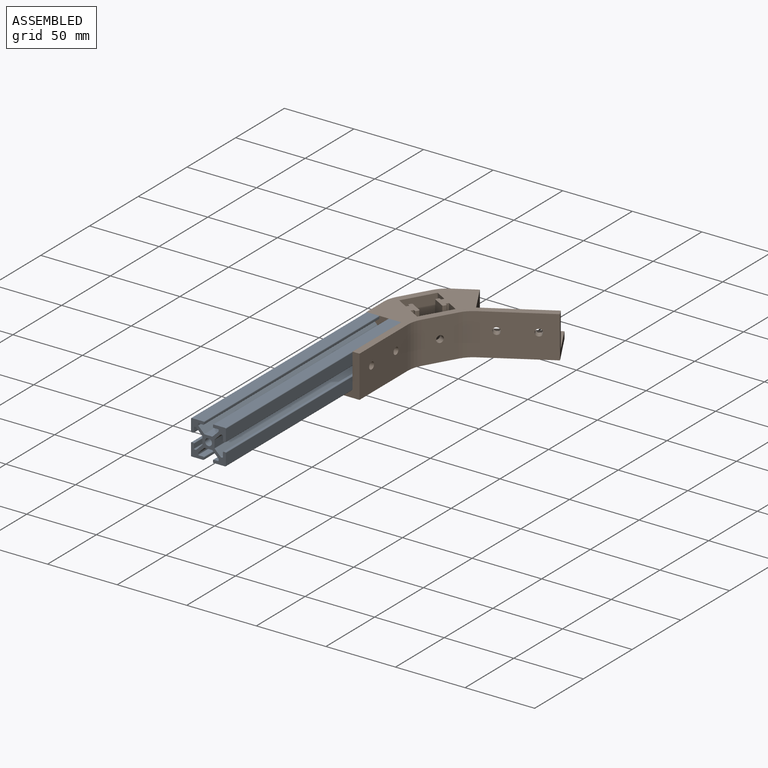
[diagram: assembled view]
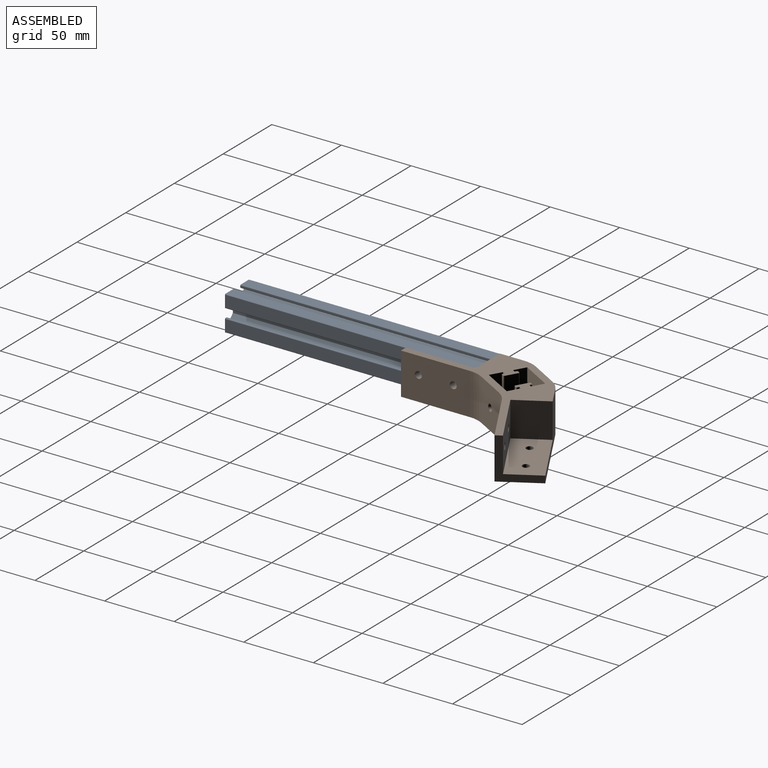
[diagram: assembled view, second angle]
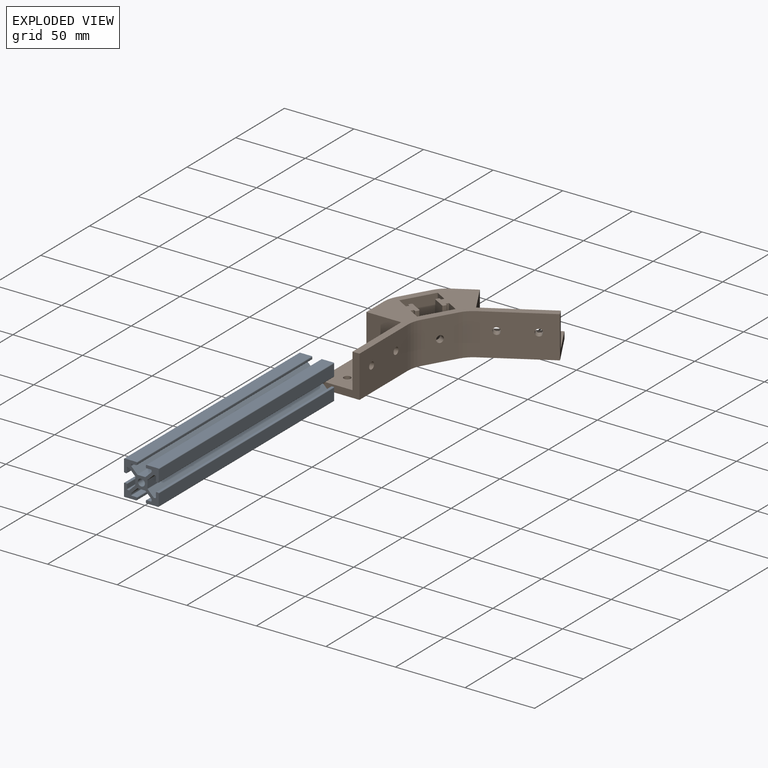
[diagram: exploded view]
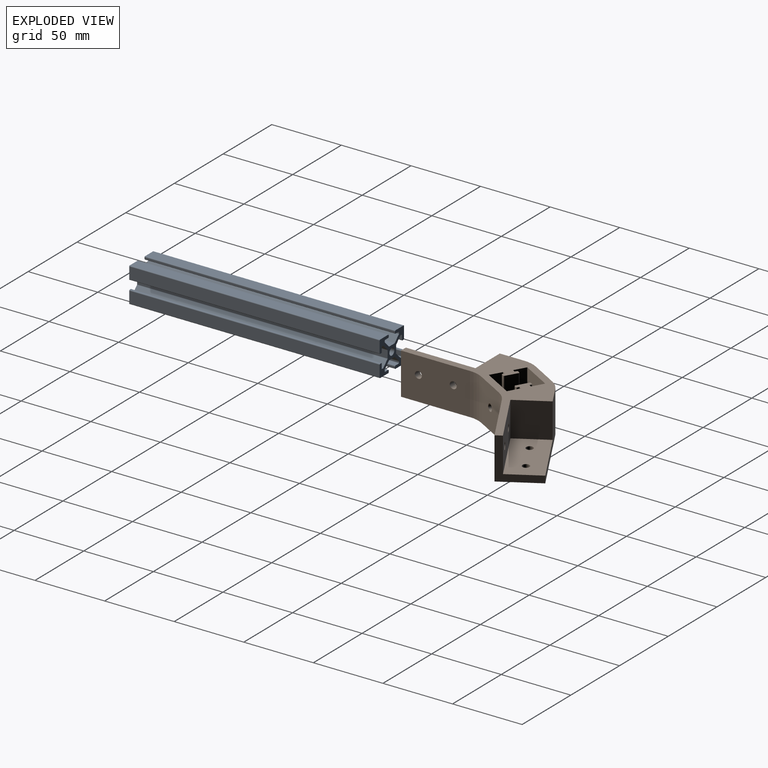
[diagram: exploded view, second angle]
ASSEMBLY  parts=2 mates=3
PART A: 91 faces, bbox 25x25x180 mm
  f0: cylinder r=0.5mm len=180mm, axis (0,0,-1), area 70.7mm2, adj f1,f88,f89,f90
  f1: plane 180x5.33mm, normal (0,1,0), area 960mm2, adj f0,f2,f89,f90
  f2: cylinder r=0.5mm len=180mm, axis (0,0,-1), area 70.7mm2, adj f1,f3,f89,f90
  f3: plane 180x4.18mm, normal (0.71,0.71,0), area 1063.6mm2, adj f2,f4,f89,f90
  f4: cylinder r=0.5mm len=180mm, axis (0,0,-1), area 70.7mm2, adj f3,f5,f89,f90
  f5: plane 180x0.81mm, normal (1,0,0), area 146.1mm2, adj f4,f6,f89,f90
  f6: cylinder r=0.5mm len=180mm, axis (0,0,-1), area 141.4mm2, adj f5,f7,f89,f90
  f7: plane 180x3.1mm, normal (0,-1,0), area 557.1mm2, adj f6,f8,f89,f90
  f8: cylinder r=0.5mm len=180mm, axis (0,0,-1), area 141.4mm2, adj f7,f9,f89,f90
  f9: plane 180x1.13mm, normal (1,0,0), area 203.4mm2, adj f8,f10,f89,f90
  f10: cylinder r=0.5mm len=180mm, axis (0,0,-1), area 141.4mm2, adj f9,f11,f89,f90
  f11: plane 180x8.25mm, normal (0,1,0), area 1485mm2, adj f10,f12,f89,f90
  f12: cylinder r=0.5mm len=180mm, axis (0,0,-1), area 141.4mm2, adj f11,f13,f89,f90
  f13: plane 180x8.25mm, normal (-1,0,0), area 1485mm2, adj f12,f14,f89,f90
  f14: cylinder r=0.5mm len=180mm, axis (0,0,-1), area 141.4mm2, adj f13,f15,f89,f90
  f15: plane 180x1.13mm, normal (0,-1,0), area 203.4mm2, adj f14,f16,f89,f90
  f16: cylinder r=0.5mm len=180mm, axis (0,0,-1), area 141.4mm2, adj f15,f17,f89,f90
  f17: plane 180x3.1mm, normal (1,0,0), area 557.1mm2, adj f16,f18,f89,f90
  f18: cylinder r=0.5mm len=180mm, axis (0,0,-1), area 141.4mm2, adj f17,f19,f89,f90
  f19: plane 180x0.81mm, normal (0,-1,0), area 146.1mm2, adj f18,f20,f89,f90
  f20: cylinder r=0.5mm len=180mm, axis (0,0,-1), area 70.7mm2, adj f19,f21,f89,f90
  f21: plane 180x4.18mm, normal (-0.71,-0.71,0), area 1063.6mm2, adj f20,f22,f89,f90
  f22: cylinder r=0.5mm len=180mm, axis (0,0,-1), area 70.7mm2, adj f21,f23,f89,f90
  f23: plane 180x5.33mm, normal (-1,0,0), area 960mm2, adj f22,f24,f89,f90
  f24: cylinder r=0.5mm len=180mm, axis (0,0,-1), area 70.7mm2, adj f23,f25,f89,f90
  f25: plane 180x4.18mm, normal (-0.71,0.71,0), area 1063.6mm2, adj f24,f26,f89,f90
  f26: cylinder r=0.5mm len=180mm, axis (0,0,-1), area 70.7mm2, adj f25,f27,f89,f90
  f27: plane 180x0.81mm, normal (0,1,0), area 146.1mm2, adj f26,f28,f89,f90
  f28: cylinder r=0.5mm len=180mm, axis (0,0,-1), area 141.4mm2, adj f27,f29,f89,f90
  f29: plane 180x3.1mm, normal (1,0,0), area 557.1mm2, adj f28,f30,f89,f90
  f30: cylinder r=0.5mm len=180mm, axis (0,0,-1), area 141.4mm2, adj f29,f31,f89,f90
  f31: plane 180x1.13mm, normal (0,1,0), area 203.4mm2, adj f30,f32,f89,f90
  f32: cylinder r=0.5mm len=180mm, axis (0,0,-1), area 141.4mm2, adj f31,f33,f89,f90
  f33: plane 180x8.25mm, normal (-1,0,0), area 1485mm2, adj f32,f34,f89,f90
  f34: cylinder r=0.5mm len=180mm, axis (0,0,-1), area 141.4mm2, adj f33,f35,f89,f90
  f35: plane 180x8.25mm, normal (0,-1,0), area 1485mm2, adj f34,f36,f89,f90
  f36: cylinder r=0.5mm len=180mm, axis (0,0,-1), area 141.4mm2, adj f35,f37,f89,f90
  f37: plane 180x1.13mm, normal (1,0,0), area 203.4mm2, adj f36,f38,f89,f90
  f38: cylinder r=0.5mm len=180mm, axis (0,0,-1), area 141.4mm2, adj f37,f39,f89,f90
  f39: plane 180x3.1mm, normal (0,1,0), area 557.1mm2, adj f38,f40,f89,f90
  f40: cylinder r=0.5mm len=180mm, axis (0,0,-1), area 141.4mm2, adj f39,f41,f89,f90
  f41: plane 180x0.81mm, normal (1,0,0), area 146.1mm2, adj f40,f42,f89,f90
  f42: cylinder r=0.5mm len=180mm, axis (0,0,-1), area 70.7mm2, adj f41,f43,f89,f90
  f43: plane 180x4.18mm, normal (0.71,-0.71,0), area 1063.6mm2, adj f42,f44,f89,f90
  f44: cylinder r=0.5mm len=180mm, axis (0,0,-1), area 70.7mm2, adj f43,f45,f89,f90
  f45: plane 180x5.33mm, normal (0,-1,0), area 960mm2, adj f44,f46,f89,f90
  f46: cylinder r=0.5mm len=180mm, axis (0,0,-1), area 70.7mm2, adj f45,f47,f89,f90
  f47: plane 180x4.18mm, normal (-0.71,-0.71,0), area 1063.6mm2, adj f46,f48,f89,f90
  f48: cylinder r=0.5mm len=180mm, axis (0,0,-1), area 70.7mm2, adj f47,f49,f89,f90
  f49: plane 180x0.81mm, normal (-1,0,0), area 146.1mm2, adj f48,f50,f89,f90
  f50: cylinder r=0.5mm len=180mm, axis (0,0,-1), area 141.4mm2, adj f49,f51,f89,f90
  f51: plane 180x3.1mm, normal (0,1,0), area 557.1mm2, adj f50,f52,f89,f90
  f52: cylinder r=0.5mm len=180mm, axis (0,0,-1), area 141.4mm2, adj f51,f53,f89,f90
  f53: plane 180x1.13mm, normal (-1,0,0), area 203.4mm2, adj f52,f54,f89,f90
  f54: cylinder r=0.5mm len=180mm, axis (0,0,-1), area 141.4mm2, adj f53,f55,f89,f90
  f55: plane 180x8.25mm, normal (0,-1,0), area 1485mm2, adj f54,f56,f89,f90
  f56: cylinder r=0.5mm len=180mm, axis (0,0,-1), area 141.4mm2, adj f55,f57,f89,f90
  f57: plane 180x8.25mm, normal (1,0,0), area 1485mm2, adj f56,f58,f89,f90
  f58: cylinder r=0.5mm len=180mm, axis (0,0,-1), area 141.4mm2, adj f57,f59,f89,f90
  f59: plane 180x1.13mm, normal (0,1,0), area 203.4mm2, adj f58,f60,f89,f90
  f60: cylinder r=0.5mm len=180mm, axis (0,0,-1), area 141.4mm2, adj f59,f61,f89,f90
  f61: plane 180x3.1mm, normal (-1,0,0), area 557.1mm2, adj f60,f62,f89,f90
  f62: cylinder r=0.5mm len=180mm, axis (0,0,-1), area 141.4mm2, adj f61,f63,f89,f90
  f63: plane 180x0.81mm, normal (0,1,0), area 146.1mm2, adj f62,f64,f89,f90
  f64: cylinder r=0.5mm len=180mm, axis (0,0,-1), area 70.7mm2, adj f63,f65,f89,f90
  f65: plane 180x4.18mm, normal (0.71,0.71,0), area 1063.6mm2, adj f64,f66,f89,f90
  f66: cylinder r=0.5mm len=180mm, axis (0,0,-1), area 70.7mm2, adj f65,f67,f89,f90
  f67: plane 180x5.33mm, normal (1,0,0), area 960mm2, adj f66,f68,f89,f90
  f68: cylinder r=0.5mm len=180mm, axis (0,0,-1), area 70.7mm2, adj f67,f69,f89,f90
  f69: plane 180x4.18mm, normal (0.71,-0.71,0), area 1063.6mm2, adj f68,f70,f89,f90
  f70: cylinder r=0.5mm len=180mm, axis (0,0,-1), area 70.7mm2, adj f69,f71,f89,f90
  f71: plane 180x0.81mm, normal (0,-1,0), area 146.1mm2, adj f70,f72,f89,f90
  f72: cylinder r=0.5mm len=180mm, axis (0,0,-1), area 141.4mm2, adj f71,f73,f89,f90
  f73: plane 180x3.1mm, normal (-1,0,0), area 557.1mm2, adj f72,f74,f89,f90
  f74: cylinder r=0.5mm len=180mm, axis (0,0,-1), area 141.4mm2, adj f73,f75,f89,f90
  f75: plane 180x1.13mm, normal (0,-1,0), area 203.4mm2, adj f74,f76,f89,f90
  f76: cylinder r=0.5mm len=180mm, axis (0,0,-1), area 141.4mm2, adj f75,f77,f89,f90
  f77: plane 180x8.25mm, normal (1,0,0), area 1485mm2, adj f76,f78,f89,f90
  f78: cylinder r=0.5mm len=180mm, axis (0,0,-1), area 141.4mm2, adj f77,f79,f89,f90
  f79: plane 180x8.25mm, normal (0,1,0), area 1485mm2, adj f78,f80,f89,f90
  f80: cylinder r=0.5mm len=180mm, axis (0,0,-1), area 141.4mm2, adj f79,f81,f89,f90
  f81: plane 180x1.13mm, normal (-1,0,0), area 203.4mm2, adj f80,f82,f89,f90
  f82: cylinder r=0.5mm len=180mm, axis (0,0,-1), area 141.4mm2, adj f81,f83,f89,f90
  f83: plane 180x3.1mm, normal (0,-1,0), area 557.1mm2, adj f82,f84,f89,f90
  f84: cylinder r=0.5mm len=180mm, axis (0,0,-1), area 141.4mm2, adj f83,f85,f89,f90
  f85: plane 180x0.81mm, normal (-1,0,0), area 146.1mm2, adj f84,f86,f89,f90
  f86: cylinder r=0.5mm len=180mm, axis (0,0,-1), area 70.7mm2, adj f85,f88,f89,f90
  f87: cylinder r=2.5mm len=180mm, axis (0,0,-1), area 2827.4mm2, adj f89,f90
  f88: plane 180x4.18mm, normal (-0.71,0.71,0), area 1063.6mm2, adj f0,f86,f89,f90
  f89: plane 25x25mm, normal (0,0,1), area 277.4mm2, adj f0,f1,f2,f3,f4,f5,f6,f7
  f90: plane 25x25mm, normal (0,0,-1), area 277.4mm2, adj f0,f1,f2,f3,f4,f5,f6,f7
PART B: 57 faces, bbox 62.5x160.3x30 mm
  f0: plane 30x24.28mm, normal (1,0,0), area 708.8mm2, adj f20,f21,f25,f30,f55
  f1: plane 25x21.65mm, normal (0.5,0.87,0), area 625mm2, adj f10,f20,f22,f23
  f2: cylinder r=0.75mm len=30mm, axis (0,0,-1), area 35.3mm2, adj f3,f19,f20,f21
  f3: plane 30x1.5mm, normal (1,0,0), area 45mm2, adj f2,f4,f20,f21
  f4: cylinder r=0.75mm len=30mm, axis (0,0,-1), area 35.3mm2, adj f3,f5,f20,f21
  f5: plane 30x1.25mm, normal (0,1,0), area 37.5mm2, adj f4,f6,f20,f21
  f6: plane 30x2.13mm, normal (1,0,0), area 63.9mm2, adj f5,f7,f20,f21
  f7: plane 30x9.25mm, normal (0,-1,0), area 277.5mm2, adj f6,f8,f20,f21
  f8: plane 30x25mm, normal (-1,0,0), area 730.4mm2, adj f7,f20,f21,f25,f38
  f9: plane 42.99x30mm, normal (0.87,-0.5,0), area 1450mm2, adj f20,f21,f24,f28,f29,f30
  f10: plane 58.61x33.84mm, normal (-0.87,0.5,0), area 780.4mm2, adj f1,f20,f21,f22,f24,f31
  f11: plane 30x23.04mm, normal (-1,0,0), area 691.2mm2, adj f20,f21,f31,f56
  f12: plane 30x25mm, normal (1,0,0), area 750mm2, adj f13,f20,f21,f41
  f13: plane 30x9.25mm, normal (0,-1,0), area 277.5mm2, adj f12,f14,f20,f21
  f14: plane 30x2.13mm, normal (-1,0,0), area 63.9mm2, adj f13,f15,f20,f21
  f15: plane 30x1.25mm, normal (0,1,0), area 37.5mm2, adj f14,f16,f20,f21
  f16: cylinder r=0.75mm len=30mm, axis (0,0,-1), area 35.3mm2, adj f15,f17,f20,f21
  f17: plane 30x1.5mm, normal (-1,0,0), area 45mm2, adj f16,f18,f20,f21
  f18: cylinder r=0.75mm len=30mm, axis (0,0,-1), area 35.3mm2, adj f17,f19,f20,f21
  f19: plane 30x9mm, normal (0,-1,0), area 270mm2, adj f2,f18,f20,f21
  f20: plane 135.26x62.5mm, normal (0,0,1), area 2009.1mm2, adj f0,f1,f2,f3,f4,f5,f6,f7
  f21: plane 160.26x62.5mm, normal (0,0,-1), area 4430.6mm2, adj f0,f2,f3,f4,f5,f6,f7,f8
  f22: plane 55.8x46.65mm, normal (0,0,1), area 1210.7mm2, adj f1,f10,f23,f24,f26,f27
  f23: plane 43.3x25mm, normal (-0.87,0.5,0), area 1210.7mm2, adj f1,f20,f22,f24,f28,f29
  f24: plane 30x25.98mm, normal (0.5,0.87,0), area 275mm2, adj f9,f10,f20,f21,f22,f23
  f25: cylinder r=2.5mm len=5mm, axis (1,0,0), area 78.5mm2, adj f0,f8
  f26: cylinder r=2.5mm len=5mm, axis (0,0,-1), area 78.5mm2, adj f21,f22
  f27: cylinder r=2.5mm len=5mm, axis (0,0,-1), area 78.5mm2, adj f21,f22
  f28: cylinder r=2.5mm len=6.83mm, axis (0.87,-0.5,0), area 78.5mm2, adj f9,f23
  f29: cylinder r=2.5mm len=6.83mm, axis (0.87,-0.5,0), area 78.5mm2, adj f9,f23
  f30: cylinder r=20mm len=30mm, axis (0,0,1), area 314.2mm2, adj f0,f9,f20,f21
  f31: cylinder r=20mm len=30mm, axis (0,0,-1), area 314.2mm2, adj f10,f11,f20,f21
  f32: plane 25x21.65mm, normal (0.5,-0.87,0), area 625mm2, adj f20,f40,f48,f49
  f33: cylinder r=0.75mm len=30mm, axis (0,0,-1), area 35.3mm2, adj f20,f21,f34,f47
  f34: plane 30x1.5mm, normal (1,0,0), area 45mm2, adj f20,f21,f33,f35
  f35: cylinder r=0.75mm len=30mm, axis (0,0,-1), area 35.3mm2, adj f20,f21,f34,f36
  f36: plane 30x1.25mm, normal (0,-1,0), area 37.5mm2, adj f20,f21,f35,f37
  f37: plane 30x2.13mm, normal (1,0,0), area 63.9mm2, adj f20,f21,f36,f38
  f38: plane 30x9.25mm, normal (0,1,0), area 277.5mm2, adj f8,f20,f21,f37
  f39: plane 42.99x30mm, normal (0.87,0.5,0), area 1450mm2, adj f20,f21,f50,f53,f54,f55
  f40: plane 58.61x33.84mm, normal (-0.87,-0.5,0), area 780.4mm2, adj f20,f21,f32,f48,f50,f56
  f41: plane 30x9.25mm, normal (0,1,0), area 277.5mm2, adj f12,f20,f21,f42
  f42: plane 30x2.13mm, normal (-1,0,0), area 63.9mm2, adj f20,f21,f41,f43
  f43: plane 30x1.25mm, normal (0,-1,0), area 37.5mm2, adj f20,f21,f42,f44
  f44: cylinder r=0.75mm len=30mm, axis (0,0,-1), area 35.3mm2, adj f20,f21,f43,f45
  f45: plane 30x1.5mm, normal (-1,0,0), area 45mm2, adj f20,f21,f44,f46
  f46: cylinder r=0.75mm len=30mm, axis (0,0,-1), area 35.3mm2, adj f20,f21,f45,f47
  f47: plane 30x9mm, normal (0,1,0), area 270mm2, adj f20,f21,f33,f46
  f48: plane 55.8x46.65mm, normal (0,0,1), area 1210.7mm2, adj f32,f40,f49,f50,f51,f52
  f49: plane 43.3x25mm, normal (-0.87,-0.5,0), area 1210.7mm2, adj f20,f32,f48,f50,f53,f54
  f50: plane 30x25.98mm, normal (0.5,-0.87,0), area 275mm2, adj f20,f21,f39,f40,f48,f49
  f51: cylinder r=2.5mm len=5mm, axis (0,0,-1), area 78.5mm2, adj f21,f48
  f52: cylinder r=2.5mm len=5mm, axis (0,0,-1), area 78.5mm2, adj f21,f48
  f53: cylinder r=2.5mm len=6.83mm, axis (0.87,0.5,0), area 78.5mm2, adj f39,f49
  f54: cylinder r=2.5mm len=6.83mm, axis (0.87,0.5,0), area 78.5mm2, adj f39,f49
  f55: cylinder r=20mm len=30mm, axis (0,0,1), area 314.2mm2, adj f0,f20,f21,f39
  f56: cylinder r=20mm len=30mm, axis (0,0,-1), area 314.2mm2, adj f11,f20,f21,f40
PLACE A rot(axis=(-1,0,0),90deg) t=(-93,-94.93,40.9)mm
PLACE B rot(axis=(0,0,-1),30deg) t=(-66.75,105.23,23.4)mm
MATE planar A.f89 <-> B.f32  axis (0,1,0) through (-97.38,85.07,38.24)mm
MATE planar A.f57 <-> B.f49  axis (1,0,0) through (-80.5,-4.93,48.78)mm
MATE planar A.f11 <-> B.f48  axis (0,0,-1) through (-100.87,-4.93,28.4)mm
